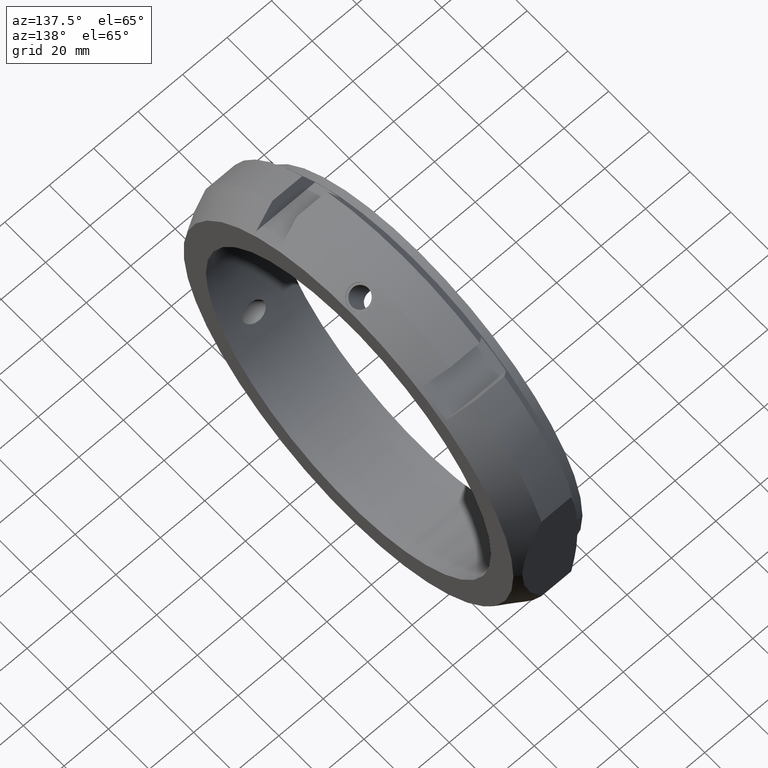
[diagram: clean part render]
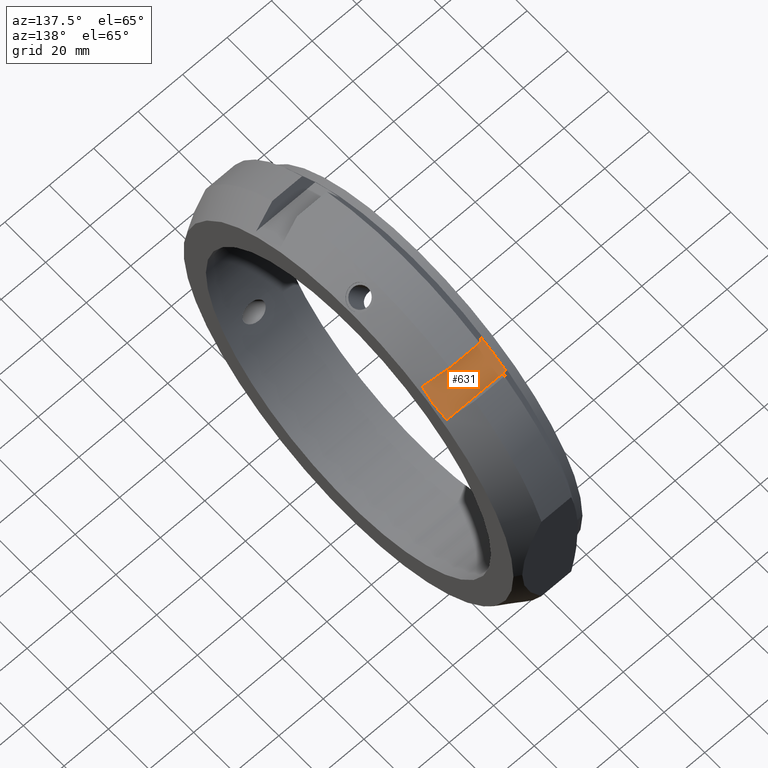
[diagram: same view with one face highlighted and labeled with its STEP entity id]
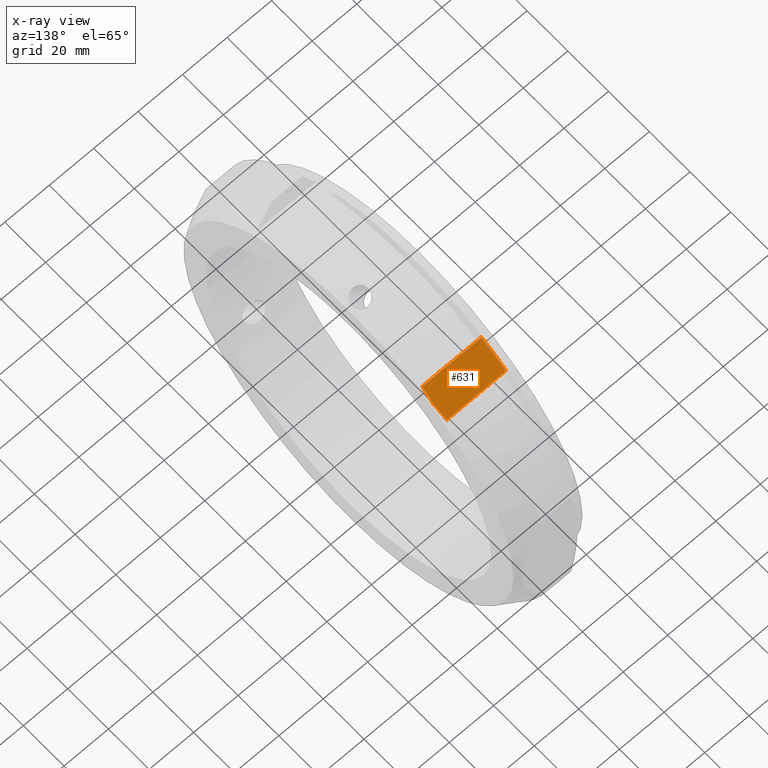
[diagram: x-ray of the same camera — body ghosted, the highlighted face saturated]
A machine part, auxiliary view. The second image highlights one B-rep face of the part: STEP entity #631.
The next image is the same camera in x-ray: the body ghosted, the highlighted face saturated — about 0% of this face is hidden behind the body in this view.
In plain terms, the highlighted planar face has unit normal (0, -0.5, -0.866).
Its self-contained STEP definition (entity closure, byte-faithful):
#472=CARTESIAN_POINT('',(4.039265774886869,34.687822173509019,74.0810704084317));
#473=VERTEX_POINT('',#472);
#487=CARTESIAN_POINT('',(4.039265774886872,46.812177826491151,67.0810704084317));
#488=VERTEX_POINT('',#487);
#489=CARTESIAN_POINT('',(4.039265774886869,34.687822173509019,74.0810704084317));
#490=CARTESIAN_POINT('',(3.693420517558863,40.750000000059352,70.58107040839748));
#491=CARTESIAN_POINT('',(4.039265774886872,46.812177826491151,67.0810704084317));
#499=(BOUNDED_CURVE()B_SPLINE_CURVE(2,(#489,#490,#491),.UNSPECIFIED.,.F.,.U.)B_SPLINE_CURVE_WITH_KNOTS((3,3),(2.474416209105883,3.931830742063438),.UNSPECIFIED.)CURVE()GEOMETRIC_REPRESENTATION_ITEM()RATIONAL_B_SPLINE_CURVE((1.034904695295608,1.038714936606102,1.034904695295867))REPRESENTATION_ITEM(''));
#500=EDGE_CURVE('',#473,#488,#499,.T.);
#594=CARTESIAN_POINT('',(0.0,34.687822173509019,74.0810704084317));
#595=DIRECTION('',(0.0,-0.5,-0.866025403784439));
#596=DIRECTION('',(0.0,0.866025403784438,-0.5));
#597=AXIS2_PLACEMENT_3D('',#594,#595,#596);
#598=PLANE('',#597);
#599=ORIENTED_EDGE('',*,*,#500,.F.);
#600=CARTESIAN_POINT('',(30.6142534829082,34.687822173509019,74.0810704084317));
#601=VERTEX_POINT('',#600);
#602=CARTESIAN_POINT('',(4.039265774886869,34.687822173509019,74.0810704084317));
#603=DIRECTION('',(1.0,0.0,0.0));
#604=VECTOR('',#603,26.574987708021332);
#605=LINE('',#602,#604);
#606=EDGE_CURVE('',#473,#601,#605,.T.);
#607=ORIENTED_EDGE('',*,*,#606,.T.);
#608=CARTESIAN_POINT('',(30.614253482908179,46.812177826491165,67.0810704084317));
#609=VERTEX_POINT('',#608);
#610=CARTESIAN_POINT('',(30.614253482908179,46.812177826491165,67.0810704084317));
#611=CARTESIAN_POINT('',(31.651789254935458,40.749999999999751,70.581070408431884));
#612=CARTESIAN_POINT('',(30.6142534829082,34.687822173509019,74.0810704084317));
#620=(BOUNDED_CURVE()B_SPLINE_CURVE(2,(#610,#611,#612),.UNSPECIFIED.,.F.,.U.)B_SPLINE_CURVE_WITH_KNOTS((3,3),(2.587590213936805,4.111663475840875),.UNSPECIFIED.)CURVE()GEOMETRIC_REPRESENTATION_ITEM()RATIONAL_B_SPLINE_CURVE((1.034904695295717,1.038714936606126,1.034904695295718))REPRESENTATION_ITEM(''));
#621=EDGE_CURVE('',#609,#601,#620,.T.);
#622=ORIENTED_EDGE('',*,*,#621,.F.);
#623=CARTESIAN_POINT('',(4.039265774886872,46.812177826491151,67.0810704084317));
#624=DIRECTION('',(1.0,0.0,0.0));
#625=VECTOR('',#624,26.574987708021307);
#626=LINE('',#623,#625);
#627=EDGE_CURVE('',#488,#609,#626,.T.);
#628=ORIENTED_EDGE('',*,*,#627,.F.);
#629=EDGE_LOOP('',(#599,#607,#622,#628));
#630=FACE_OUTER_BOUND('',#629,.T.);
#631=ADVANCED_FACE('',(#630),#598,.F.);